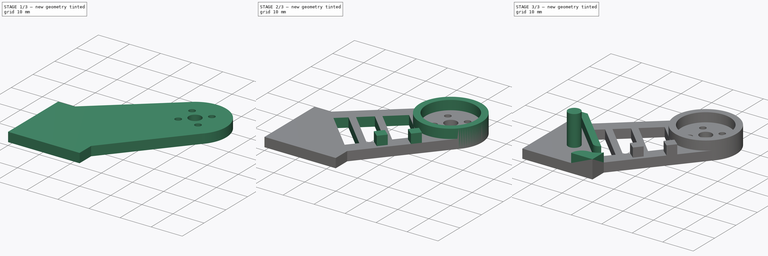
[diagram: build sequence overview — one tinted view per stage of 3, left to right]
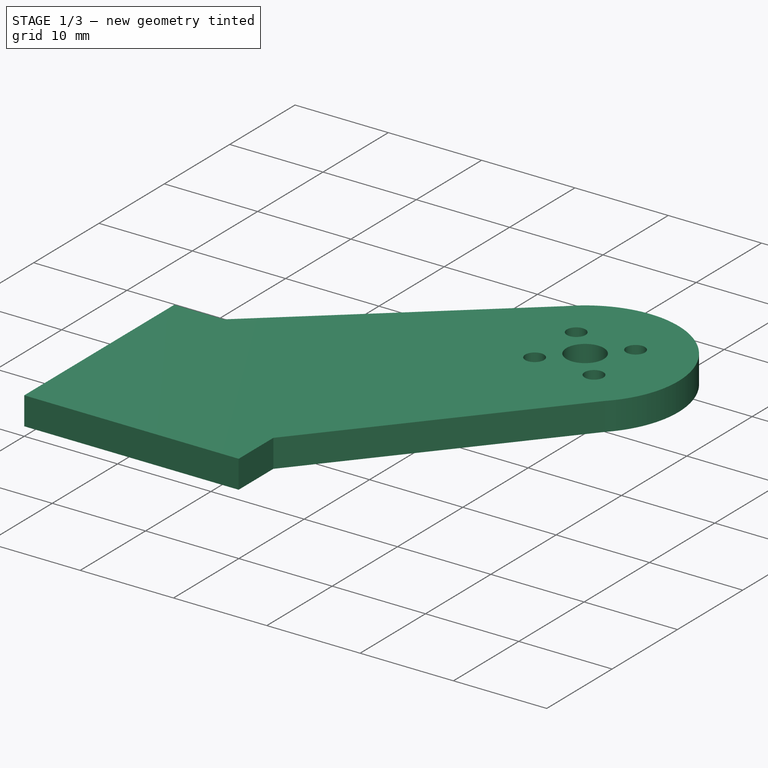
[diagram: stage 1 of 3 — iso view after this stage's code; geometry added in this stage tinted green]
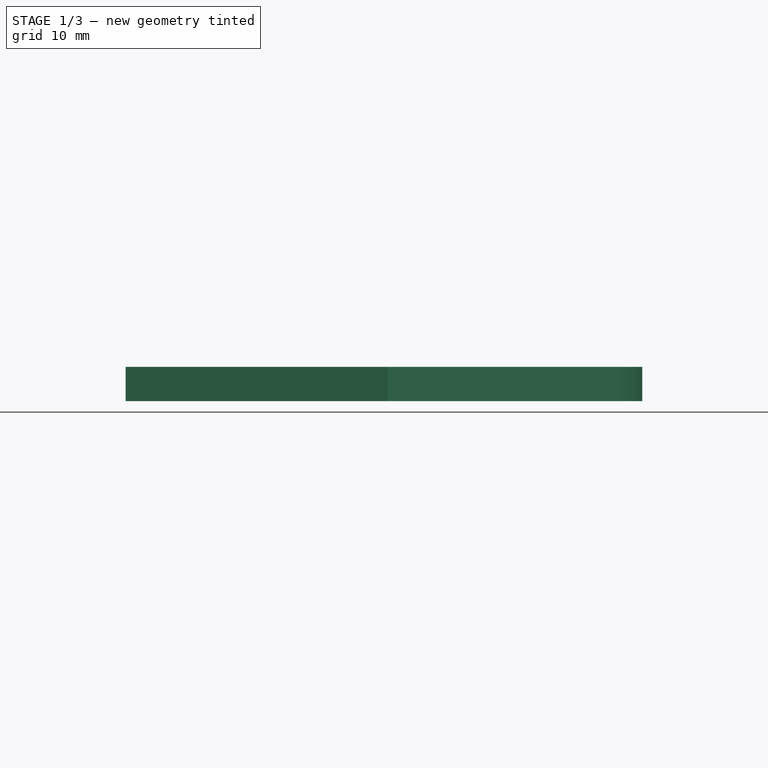
[diagram: stage 1 of 3 — front view after this stage's code; geometry added in this stage tinted green]
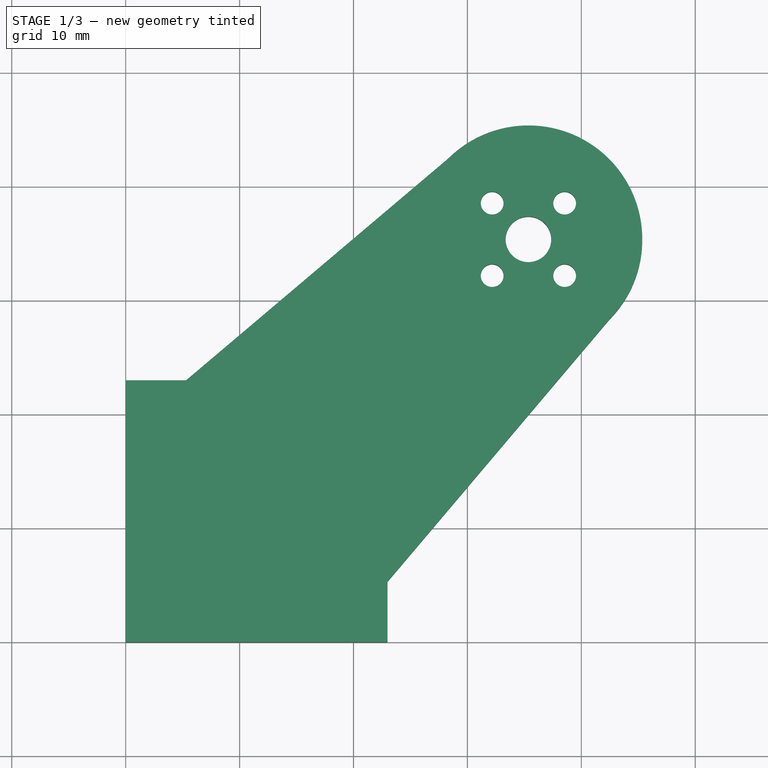
[diagram: stage 1 of 3 — top view after this stage's code; geometry added in this stage tinted green]
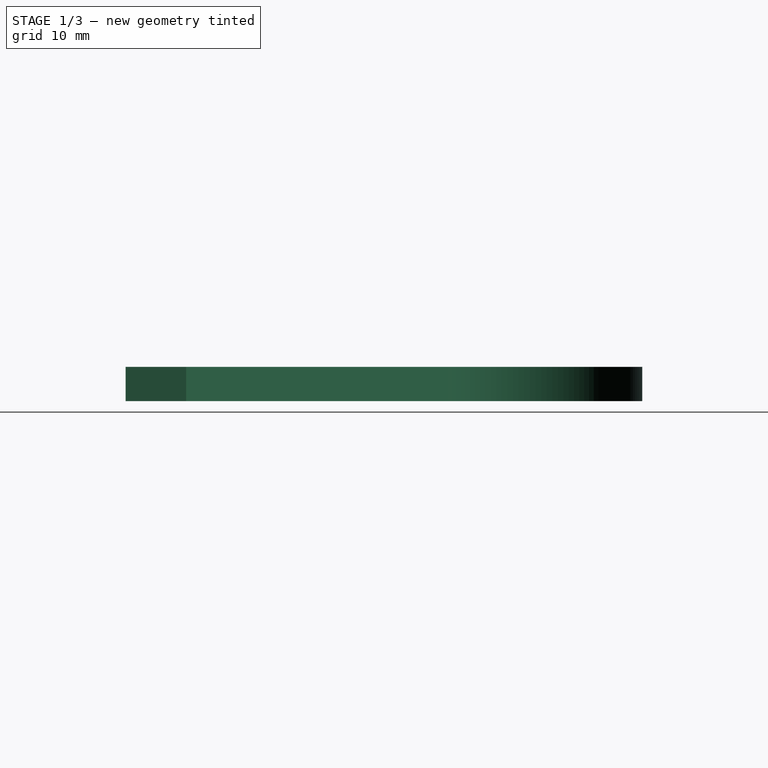
[diagram: stage 1 of 3 — right view after this stage's code; geometry added in this stage tinted green]
FCSTD DOCUMENT  (FreeCAD 0.16R6706 (Git))
Label: darkstar_main_frame
License: All rights reserved
LicenseURL: http://en.wikipedia.org/wiki/All_rights_reserved
objects: Sketcher::SketchObject×7, PartDesign::Pad×5, PartDesign::Pocket×2
note: 21 computed .brp shape members not serialized (recipe doc carries the construction recipe); baked Part::Feature solids carry a one-line shape summary decoded from their .brp

FEATURE [Sketcher::SketchObject] Sketch  label="frame_arm"
  sketch-geometry (13):
    g0: LineSegment [constr] StartX=0 StartY=0 StartZ=0 EndX=35.3553 EndY=35.3553 EndZ=0
    g1: GeomPoint [constr] X=5.3033 Y=22.981 Z=0
    g2: GeomPoint [constr] X=22.981 Y=5.3033 Z=0
    g3: GeomPoint [constr] X=14.1421 Y=14.1421 Z=0
    g4: GeomPoint [constr] X=28.2843 Y=42.4264 Z=0
    g5: GeomPoint [constr] X=42.4264 Y=28.2843 Z=0
    g6: ArcOfCircle CenterX=35.3553 CenterY=35.3553 CenterZ=0 NormalX=0 NormalY=0 NormalZ=1 Radius=10 StartAngle=5.49779 EndAngle=8.63938
    g7: LineSegment StartX=28.2843 StartY=42.4264 StartZ=0 EndX=5.3033 EndY=22.981 EndZ=0
    g8: LineSegment StartX=5.3033 StartY=22.981 StartZ=0 EndX=0 EndY=22.981 EndZ=0
    g9: LineSegment StartX=0 StartY=22.981 StartZ=0 EndX=0 EndY=0 EndZ=0
    g10: LineSegment StartX=0 StartY=0 StartZ=0 EndX=22.981 EndY=0 EndZ=0
    g11: LineSegment StartX=22.981 StartY=0 StartZ=0 EndX=22.981 EndY=5.3033 EndZ=0
    g12: LineSegment StartX=22.981 StartY=5.3033 StartZ=0 EndX=42.4264 EndY=28.2843 EndZ=0
  constraints (28):
    c: Coincident(g0,g-1)
    c: Distance(g0) = 50
    c: Angle(g-1,g0) = 0.785398
    c: PointOnObject(g3,g0)
    c: Distance(g-1,g3) = 20
    c: Distance(g1,g2) = 25
    c: Symmetric(g2,g1,g0)
    c: Symmetric(g2,g1,g3)
    c: Distance(g5,g4) = 20
    c: Symmetric(g5,g4,g0)
    c: Symmetric(g5,g4,g0)
    c: Coincident(g6,g0)
    c: Coincident(g6,g4)
    c: Coincident(g6,g5)
    c: Coincident(g7,g4)
    c: Coincident(g7,g1)
    c: Coincident(g7,g8)
    c: PointOnObject(g8,g-2)
    c: Horizontal(g8)
    c: Coincident(g8,g9)
    c: Coincident(g9,g-1)
    c: Coincident(g9,g10)
    c: PointOnObject(g10,g-1)
    c: Coincident(g10,g11)
    c: Coincident(g11,g2)
    c: Coincident(g11,g12)
    c: Coincident(g12,g5)
    c: Vertical(g11)
FEATURE [PartDesign::Pad] Pad  label="1-frame_arm"
  Length = 3
  Length2 = 100
  Sketch = -> Sketch
  Type = 0
FEATURE [Sketcher::SketchObject] Sketch001  label="motor_holes"
  ExternalGeometry = -> [Pad]
  Placement = pos=(0,0,3) rot=(0,0,1;0rad)
  Support = -> Pad [Face9]
  sketch-geometry (9):
    g0: Circle CenterX=35.3553 CenterY=35.3553 CenterZ=0 NormalX=0 NormalY=0 NormalZ=1 Radius=2
    g1: Circle [constr] CenterX=35.3553 CenterY=35.3553 CenterZ=0 NormalX=0 NormalY=0 NormalZ=1 Radius=4.5
    g2: LineSegment [constr] StartX=38.5373 StartY=38.5373 StartZ=0 EndX=32.1734 EndY=32.1734 EndZ=0
    g3: LineSegment [constr] StartX=38.5373 StartY=32.1734 StartZ=0 EndX=32.1734 EndY=38.5373 EndZ=0
    g4: LineSegment [constr] StartX=42.4264 StartY=28.2843 StartZ=0 EndX=35.3553 EndY=35.3553 EndZ=0
    g5: Circle CenterX=38.5373 CenterY=38.5373 CenterZ=0 NormalX=0 NormalY=0 NormalZ=1 Radius=1
    g6: Circle CenterX=32.1734 CenterY=38.5373 CenterZ=0 NormalX=0 NormalY=0 NormalZ=1 Radius=1
    g7: Circle CenterX=32.1734 CenterY=32.1734 CenterZ=0 NormalX=0 NormalY=0 NormalZ=1 Radius=1
    g8: Circle CenterX=38.5373 CenterY=32.1734 CenterZ=0 NormalX=0 NormalY=0 NormalZ=1 Radius=1
  constraints (22):
    c: Coincident(g0,g-3)
    c: Radius(g0) = 2
    c: Coincident(g1,g0)
    c: PointOnObject(g2,g1)
    c: PointOnObject(g2,g1)
    c: PointOnObject(g3,g1)
    c: PointOnObject(g3,g1)
    c: Perpendicular(g2,g3)
    c: PointOnObject(g0,g3)
    c: PointOnObject(g0,g2)
    c: Distance(g3,g3) = 9
    c: Coincident(g4,g-3)
    c: Coincident(g4,g0)
    c: PointOnObject(g3,g4)
    c: Coincident(g5,g2)
    c: Coincident(g6,g3)
    c: Coincident(g7,g2)
    c: Coincident(g8,g3)
    c: Radius(g5) = 1
    c: Equal(g5,g6)
    c: Equal(g6,g7)
    c: Equal(g7,g8)
FEATURE [PartDesign::Pocket] Pocket  label="2-motor_holes"
  Length = 3
  Sketch = -> Sketch001
  Type = 0
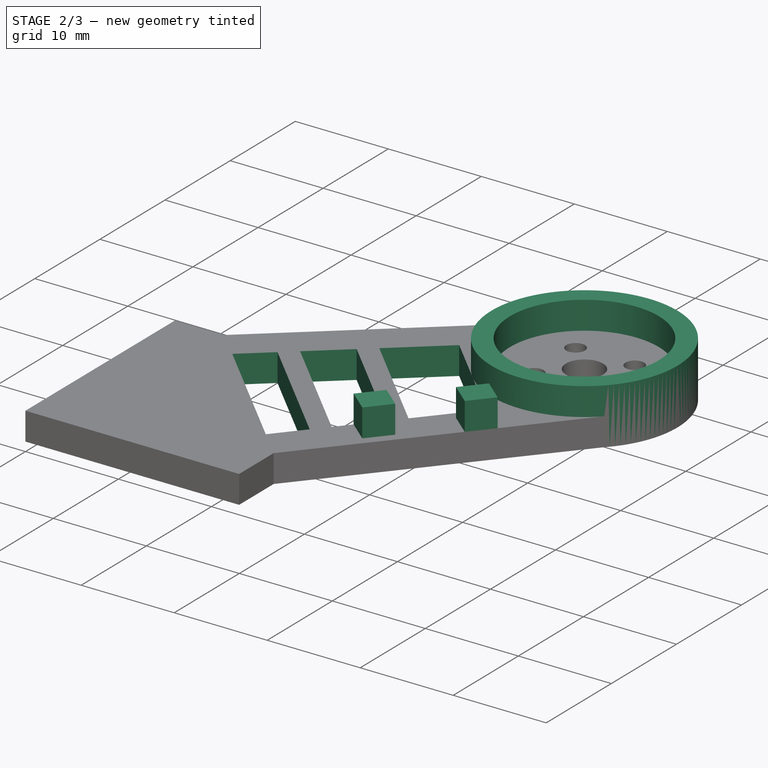
[diagram: stage 2 of 3 — iso view after this stage's code; geometry added in this stage tinted green]
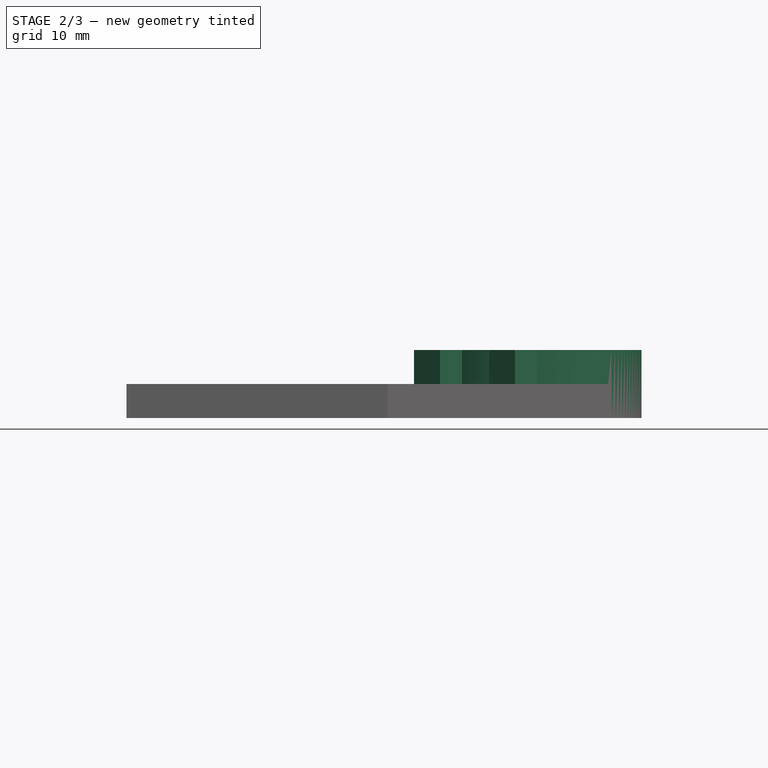
[diagram: stage 2 of 3 — front view after this stage's code; geometry added in this stage tinted green]
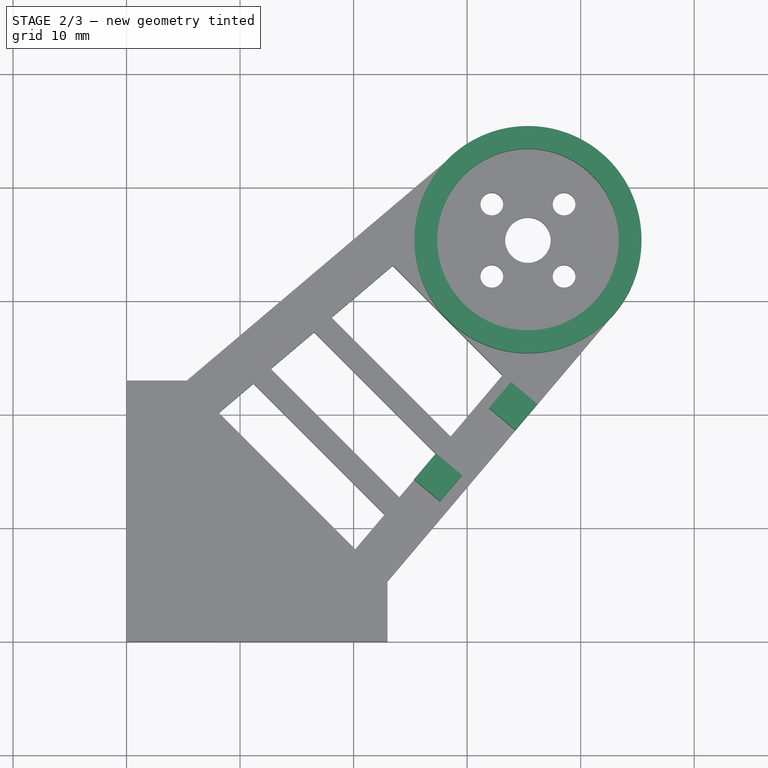
[diagram: stage 2 of 3 — top view after this stage's code; geometry added in this stage tinted green]
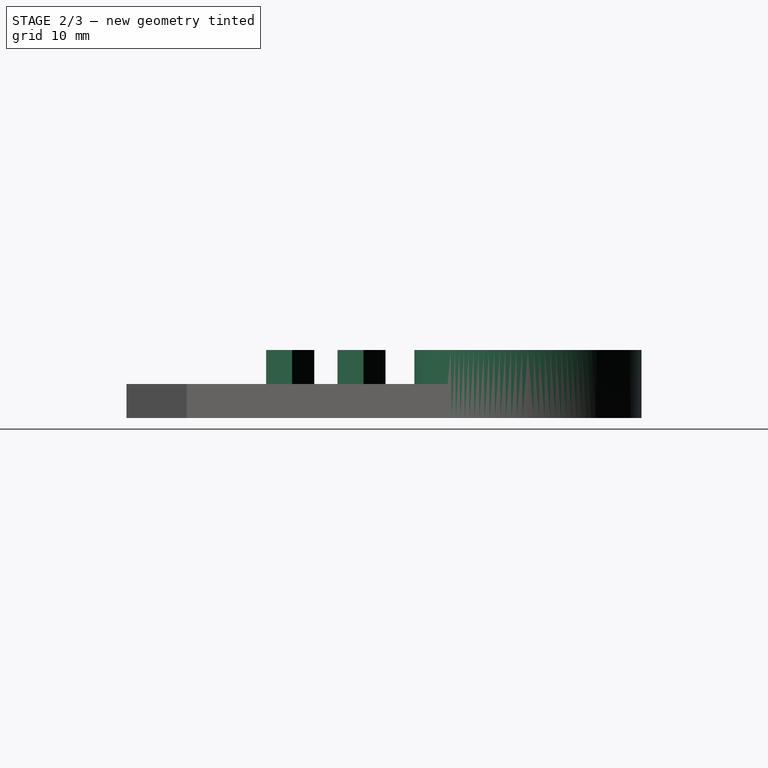
[diagram: stage 2 of 3 — right view after this stage's code; geometry added in this stage tinted green]
FEATURE [Sketcher::SketchObject] Sketch002  label="arm_vents"
  ExternalGeometry = -> [Pocket]
  Placement = pos=(0,0,3) rot=(0,0,1;0rad)
  Support = -> Pocket [Face5]
  sketch-geometry (29):
    g0: Circle [constr] CenterX=35.3553 CenterY=35.3553 CenterZ=0 NormalX=0 NormalY=0 NormalZ=1 Radius=10
    g1: GeomPoint [constr] X=39.598 Y=31.1127 Z=0
    g2: LineSegment [constr] StartX=42.4264 StartY=28.2843 StartZ=0 EndX=39.598 EndY=31.1127 EndZ=0
    g3: GeomPoint [constr] X=14.1421 Y=14.1421 Z=0
    g4: GeomPoint [constr] X=20.1525 Y=8.13173 Z=0
    g5: LineSegment [constr] StartX=22.981 StartY=5.3033 StartZ=0 EndX=20.1525 EndY=8.13173 EndZ=0
    g6: LineSegment [constr] StartX=39.598 StartY=31.1127 StartZ=0 EndX=20.1525 EndY=8.13173 EndZ=0
    g7: GeomPoint [constr] X=8.13173 Y=20.1525 Z=0
    g8: GeomPoint [constr] X=22.7363 Y=11.1853 Z=0
    g9: GeomPoint [constr] X=11.1853 Y=22.7363 Z=0
    g10: LineSegment [constr] StartX=35.3553 StartY=35.3553 StartZ=0 EndX=14.1421 EndY=14.1421 EndZ=0
    g11: GeomPoint [constr] X=12.712 Y=24.0282 Z=0
    g12: GeomPoint [constr] X=24.0282 Y=12.712 Z=0
    g13: GeomPoint [constr] X=27.2579 Y=16.529 Z=0
    g14: GeomPoint [constr] X=16.529 Y=27.2579 Z=0
    g15: GeomPoint [constr] X=18.0557 Y=28.5498 Z=0
    g16: GeomPoint [constr] X=28.5498 Y=18.0557 Z=0
    g17: LineSegment StartX=23.4524 StartY=33.1162 StartZ=0 EndX=33.1162 EndY=23.4524 EndZ=0
    g18: LineSegment StartX=8.13173 StartY=20.1525 StartZ=0 EndX=20.1525 EndY=8.13173 EndZ=0
    g19: LineSegment StartX=20.1525 StartY=8.13173 StartZ=0 EndX=22.7363 EndY=11.1853 EndZ=0
    g20: LineSegment StartX=22.7363 StartY=11.1853 StartZ=0 EndX=11.1853 EndY=22.7363 EndZ=0
    g21: LineSegment StartX=11.1853 StartY=22.7363 StartZ=0 EndX=8.13173 EndY=20.1525 EndZ=0
    g22: LineSegment StartX=12.712 StartY=24.0282 StartZ=0 EndX=24.0282 EndY=12.712 EndZ=0
    g23: LineSegment StartX=24.0282 StartY=12.712 StartZ=0 EndX=27.2579 EndY=16.529 EndZ=0
    g24: LineSegment StartX=27.2579 StartY=16.529 StartZ=0 EndX=16.529 EndY=27.2579 EndZ=0
    g25: LineSegment StartX=16.529 StartY=27.2579 StartZ=0 EndX=12.712 EndY=24.0282 EndZ=0
    g26: LineSegment StartX=18.0557 StartY=28.5498 StartZ=0 EndX=28.5498 EndY=18.0557 EndZ=0
    g27: LineSegment StartX=28.5498 StartY=18.0557 StartZ=0 EndX=33.1162 EndY=23.4524 EndZ=0
    g28: LineSegment StartX=23.4524 StartY=33.1162 StartZ=0 EndX=18.0557 EndY=28.5498 EndZ=0
  constraints (54):
    c: PointOnObject(g-3,g0)
    c: PointOnObject(g-4,g0)
    c: Symmetric(g-4,g-3,g0)
    c: Coincident(g2,g-4)
    c: Coincident(g2,g1)
    c: PointOnObject(g0,g2)
    c: Distance(g1,g2) = 4
    c: Symmetric(g-4,g-3,g3)
    c: Coincident(g5,g-4)
    c: Coincident(g5,g4)
    c: PointOnObject(g3,g5)
    c: Equal(g5,g2)
    c: Coincident(g6,g1)
    c: Coincident(g6,g4)
    c: Symmetric(g7,g4,g3)
    c: PointOnObject(g8,g6)
    c: Coincident(g10,g0)
    c: Coincident(g10,g3)
    c: Symmetric(g8,g9,g10)
    c: Distance(g8,g4) = 4
    c: PointOnObject(g12,g6)
    c: Symmetric(g12,g11,g10)
    c: Distance(g12,g8) = 2
    c: PointOnObject(g13,g6)
    c: Symmetric(g14,g13,g10)
    c: Distance(g13,g12) = 5
    c: PointOnObject(g16,g6)
    c: Symmetric(g16,g15,g10)
    c: Distance(g16,g13) = 2
    c: PointOnObject(g17,g6)
    c: Tangent(g17,g0)
    c: Symmetric(g17,g17,g10)
    c: Coincident(g18,g7)
    c: Coincident(g18,g4)
    c: Coincident(g18,g19)
    c: Coincident(g19,g8)
    c: Coincident(g19,g20)
    c: Coincident(g20,g9)
    c: Coincident(g20,g21)
    c: Coincident(g21,g18)
    c: Coincident(g22,g11)
    c: Coincident(g22,g12)
    c: Coincident(g22,g23)
    c: Coincident(g23,g13)
    c: Coincident(g23,g24)
    c: Coincident(g24,g14)
    c: Coincident(g24,g25)
    c: Coincident(g25,g22)
    c: Coincident(g26,g15)
    c: Coincident(g26,g16)
    c: Coincident(g26,g27)
    c: Coincident(g27,g17)
    c: Coincident(g28,g17)
    c: Coincident(g28,g15)
FEATURE [PartDesign::Pocket] Pocket001  label="3-arm_vents"
  Length = 3
  Sketch = -> Sketch002
  Type = 0
FEATURE [Sketcher::SketchObject] Sketch003  label="motor_sleeves"
  ExternalGeometry = -> [Pocket001]
  Placement = pos=(0,0,3) rot=(0,0,1;0rad)
  Support = -> Pocket001 [Face5]
  sketch-geometry (3):
    g0: Circle CenterX=35.3553 CenterY=35.3553 CenterZ=0 NormalX=0 NormalY=0 NormalZ=1 Radius=10
    g1: Circle CenterX=35.3553 CenterY=35.3553 CenterZ=0 NormalX=0 NormalY=0 NormalZ=1 Radius=8
    g2: LineSegment [constr] StartX=42.4264 StartY=28.2843 StartZ=0 EndX=41.0122 EndY=29.6985 EndZ=0
  constraints (7):
    c: Coincident(g0,g-3)
    c: PointOnObject(g-3,g0)
    c: Coincident(g1,g0)
    c: Coincident(g2,g-3)
    c: Perpendicular(g0,g2)
    c: PointOnObject(g2,g1)
    c: Distance(g2,g2) = 2
FEATURE [PartDesign::Pad] Pad001  label="4-motor_sleeves"
  Length = 3
  Length2 = 100
  Sketch = -> Sketch003
  Type = 0
FEATURE [Sketcher::SketchObject] Sketch004  label="motor_wire_clips"
  ExternalGeometry = -> [Pad001]
  Placement = pos=(0,0,3) rot=(0,0,1;0rad)
  Support = -> Pad001 [Face4]
  sketch-geometry (8):
    g0: LineSegment StartX=36.1592 StartY=20.8775 StartZ=0 EndX=33.869 EndY=22.8154 EndZ=0
    g1: LineSegment StartX=33.869 StartY=22.8154 StartZ=0 EndX=31.9312 EndY=20.5252 EndZ=0
    g2: LineSegment StartX=36.1592 StartY=20.8775 StartZ=0 EndX=34.2213 EndY=18.5874 EndZ=0
    g3: LineSegment StartX=34.2213 StartY=18.5874 StartZ=0 EndX=31.9312 EndY=20.5252 EndZ=0
    g4: LineSegment StartX=25.3201 StartY=14.2388 StartZ=0 EndX=27.6102 EndY=12.301 EndZ=0
    g5: LineSegment StartX=27.6102 StartY=12.301 StartZ=0 EndX=29.5481 EndY=14.5912 EndZ=0
    g6: LineSegment StartX=25.3201 StartY=14.2388 StartZ=0 EndX=27.2579 EndY=16.529 EndZ=0
    g7: LineSegment StartX=27.2579 StartY=16.529 StartZ=0 EndX=29.5481 EndY=14.5912 EndZ=0
  constraints (23):
    c: PointOnObject(g0,g-3)
    c: Distance(g0) = 3
    c: PointOnObject(g-4,g0)
    c: Perpendicular(g-3,g0)
    c: Coincident(g1,g0)
    c: Coincident(g2,g0)
    c: PointOnObject(g2,g-3)
    c: Coincident(g3,g2)
    c: Coincident(g3,g1)
    c: Perpendicular(g1,g0)
    c: Perpendicular(g3,g1)
    c: Equal(g0,g1)
    c: PointOnObject(g4,g-5)
    c: Perpendicular(g-5,g4)
    c: Equal(g4,g1)
    c: Coincident(g5,g4)
    c: Coincident(g6,g4)
    c: Coincident(g6,g-5)
    c: Coincident(g7,g6)
    c: Coincident(g7,g5)
    c: Perpendicular(g5,g4)
    c: Equal(g5,g1)
    c: Perpendicular(g7,g5)
FEATURE [PartDesign::Pad] Pad002  label="5-motor_wire_clips"
  Length = 3
  Length2 = 100
  Sketch = -> Sketch004
  Type = 0
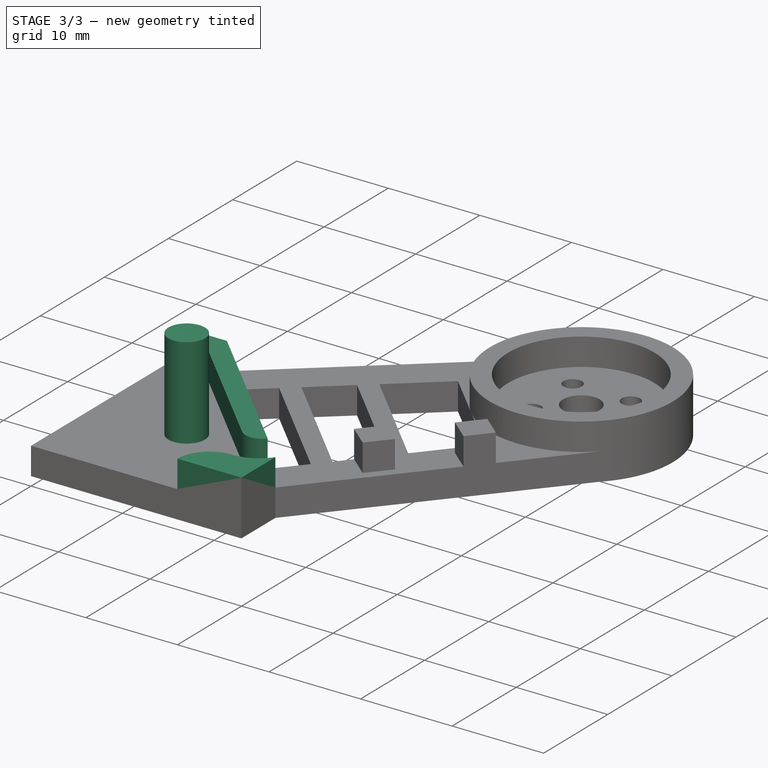
[diagram: stage 3 of 3 — iso view after this stage's code; geometry added in this stage tinted green]
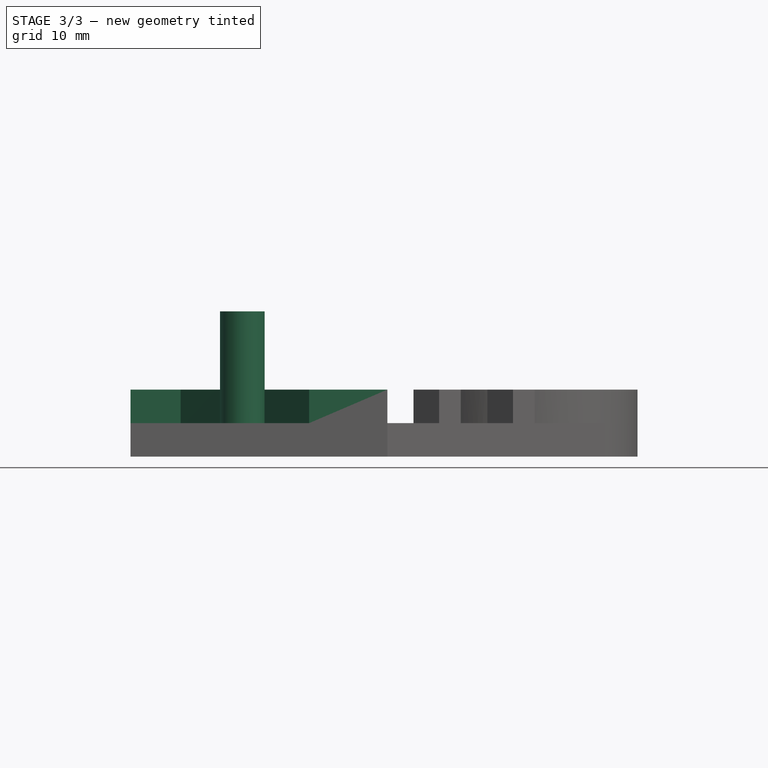
[diagram: stage 3 of 3 — front view after this stage's code; geometry added in this stage tinted green]
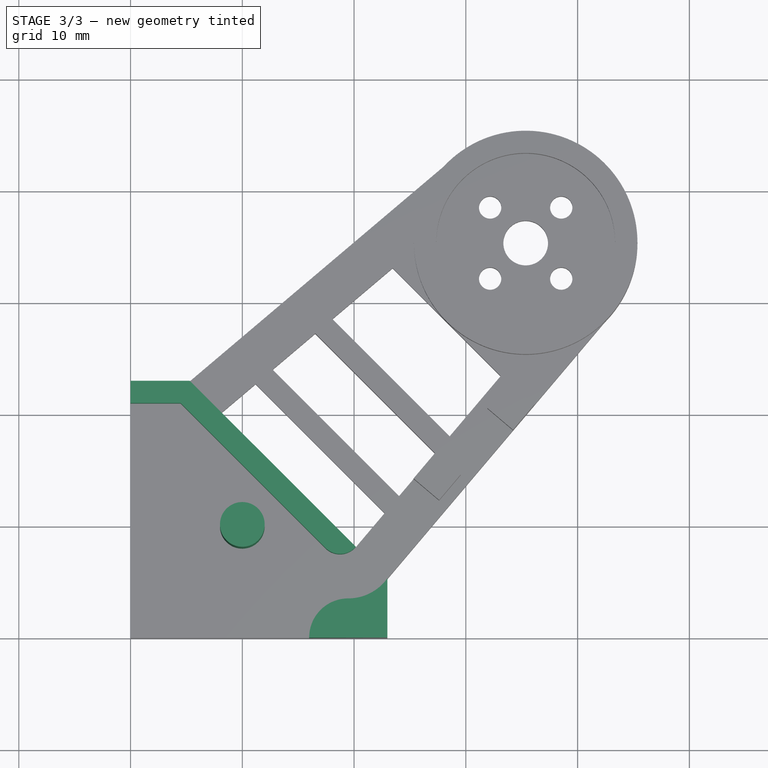
[diagram: stage 3 of 3 — top view after this stage's code; geometry added in this stage tinted green]
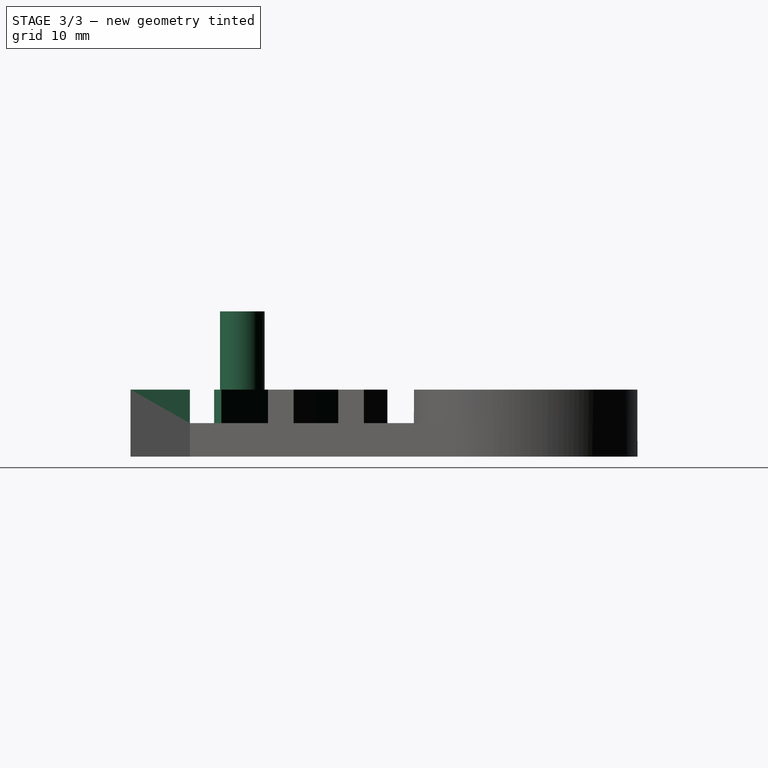
[diagram: stage 3 of 3 — right view after this stage's code; geometry added in this stage tinted green]
FEATURE [Sketcher::SketchObject] Sketch005  label="pcb_riser"
  Placement = pos=(0,0,3) rot=(0,0,1;0rad)
  Support = -> Pad002 [Face4]
  sketch-geometry (2):
    g0: GeomPoint [constr] X=10 Y=10 Z=0
    g1: Circle CenterX=10 CenterY=10 CenterZ=0 NormalX=0 NormalY=0 NormalZ=1 Radius=2
  constraints (4):
    c: DistanceX(g-1,g0) = 10
    c: DistanceY(g-1,g0) = 10
    c: Coincident(g1,g0)
    c: Radius(g1) = 2
FEATURE [PartDesign::Pad] Pad003  label="6-pcb_riser"
  Length = 10
  Length2 = 100
  Sketch = -> Sketch005
  Type = 0
FEATURE [Sketcher::SketchObject] Sketch006  label="frame_lip"
  ExternalGeometry = -> [Pad003]
  Placement = pos=(0,0,3) rot=(0,0,1;0rad)
  Support = -> Pad003 [Face5]
  sketch-geometry (14):
    g0: LineSegment StartX=5.3033 StartY=22.981 StartZ=0 EndX=0 EndY=22.981 EndZ=0
    g1: LineSegment StartX=0 StartY=22.981 StartZ=0 EndX=0 EndY=20.981 EndZ=0
    g2: LineSegment StartX=0 StartY=20.981 StartZ=0 EndX=4.47487 EndY=20.981 EndZ=0
    g3: LineSegment StartX=5.3033 StartY=22.981 StartZ=0 EndX=20.1525 EndY=8.13173 EndZ=0
    g4: LineSegment [constr] StartX=4.47487 StartY=20.981 StartZ=0 EndX=5.88909 EndY=22.3952 EndZ=0
    g5: LineSegment StartX=4.47487 StartY=20.981 StartZ=0 EndX=17.4371 EndY=8.01878 EndZ=0
    g6: LineSegment StartX=22.981 StartY=5.3033 StartZ=0 EndX=22.981 EndY=0 EndZ=0
    g7: LineSegment StartX=22.981 StartY=0 StartZ=0 EndX=20.981 EndY=0 EndZ=0
    g8: ArcOfCircle CenterX=19.481 CenterY=0 CenterZ=0 NormalX=0 NormalY=0 NormalZ=1 Radius=3.5 StartAngle=1.5708 EndAngle=3.14159
    g9: LineSegment StartX=17.981 StartY=0 StartZ=0 EndX=15.981 EndY=0 EndZ=0
    g10: LineSegment [constr] StartX=19.481 StartY=0 StartZ=0 EndX=19.481 EndY=3.5 EndZ=0
    g11: ArcOfCircle CenterX=19.481 CenterY=7.79818 CenterZ=0 NormalX=0 NormalY=0 NormalZ=1 Radius=4.29818 StartAngle=4.71239 EndAngle=5.6639
    g12: ArcOfCircle CenterX=18.7428 CenterY=9.32455 CenterZ=0 NormalX=0 NormalY=0 NormalZ=1 Radius=1.84664 StartAngle=3.92699 EndAngle=5.58093
    g13: LineSegment StartX=20.981 StartY=0 StartZ=0 EndX=17.981 EndY=0 EndZ=0
  constraints (38):
    c: Coincident(g0,g-3)
    c: Coincident(g0,g-3)
    c: Coincident(g1,g0)
    c: Distance(g1) = 2
    c: PointOnObject(g1,g-2)
    c: Coincident(g2,g1)
    c: Parallel(g2,g-3)
    c: Coincident(g3,g0)
    c: Coincident(g3,g-4)
    c: Coincident(g4,g2)
    c: PointOnObject(g4,g3)
    c: Perpendicular(g3,g4)
    c: Equal(g4,g1)
    c: Coincident(g5,g2)
    c: Parallel(g5,g3)
    c: Coincident(g6,g-5)
    c: Coincident(g6,g-5)
    c: PointOnObject(g7,g-1)
    c: PointOnObject(g9,g-1)
    c: Coincident(g7,g6)
    c: Equal(g7,g1)
    c: PointOnObject(g8,g-1)
    c: Coincident(g9,g8)
    c: Equal(g9,g7)
    c: Coincident(g10,g8)
    c: Perpendicular(g-1,g10)
    c: Coincident(g11,g6)
    c: Coincident(g11,g8)
    c: Tangent(g11,g8)
    c: Coincident(g12,g3)
    c: Coincident(g12,g5)
    c: Tangent(g12,g5)
    c: Tangent(g12,g-6)
    c: Coincident(g13,g7)
    c: Coincident(g13,g9)
    c: Distance(g13) = 3
    c: Symmetric(g7,g9,g8)
    c: Coincident(g10,g8)
FEATURE [PartDesign::Pad] Pad004  label="7-frame_lip"
  Length = 3
  Length2 = 100
  Sketch = -> Sketch006
  Type = 0
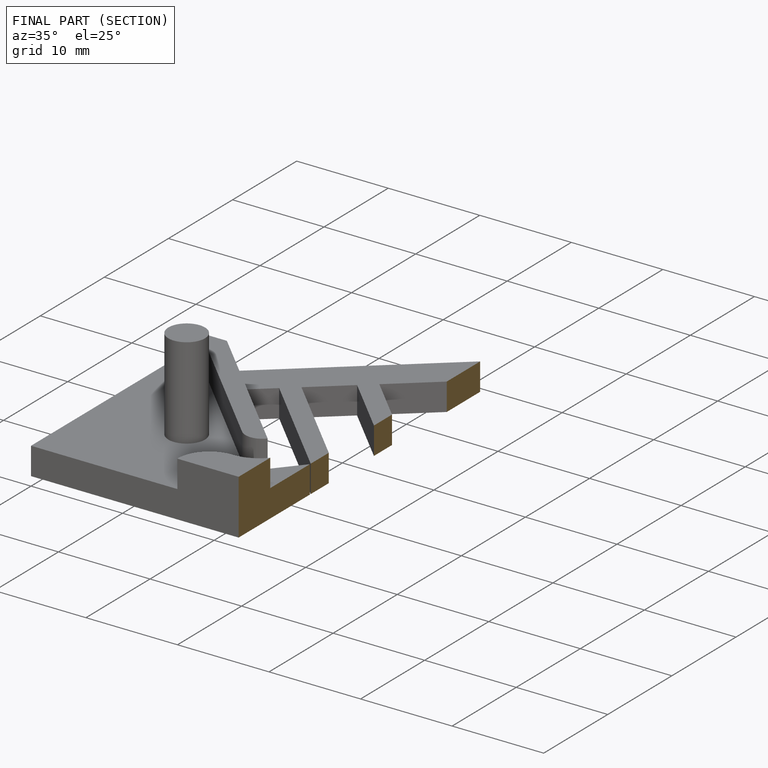
[diagram: finished part — half-section view (interior)]
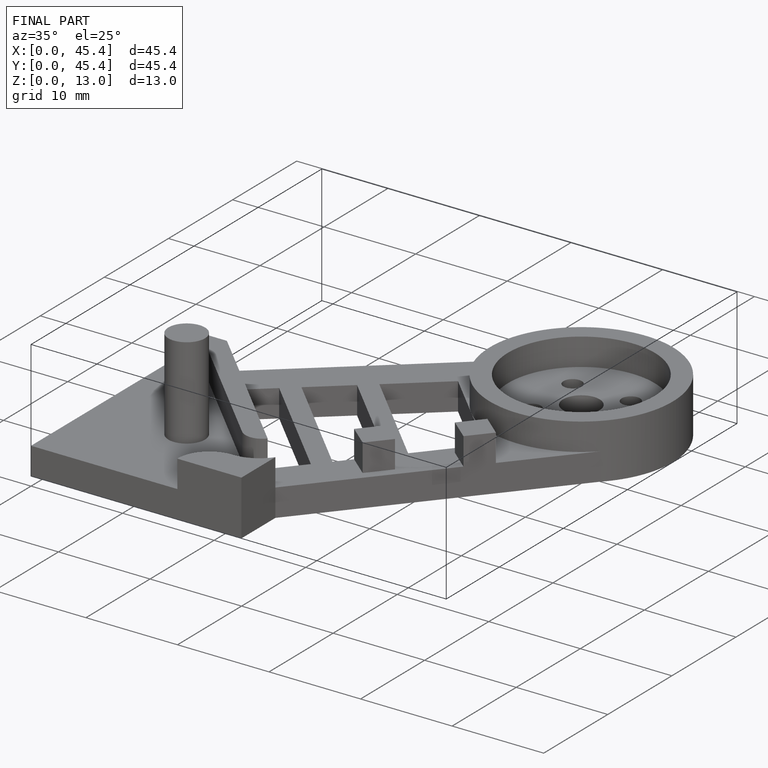
[diagram: finished part — iso view with bounding-box wireframe]
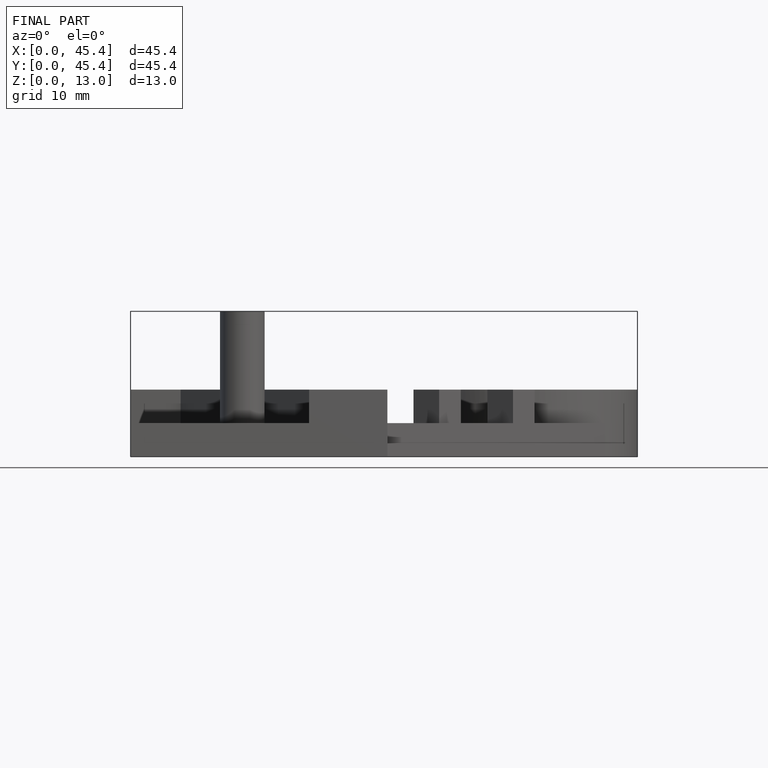
[diagram: finished part — front view with bounding-box wireframe]
